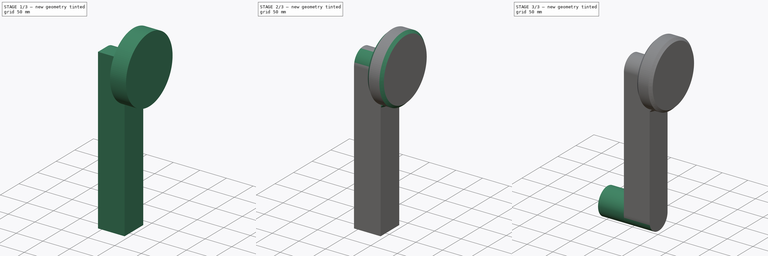
[diagram: build sequence overview — one tinted view per stage of 3, left to right]
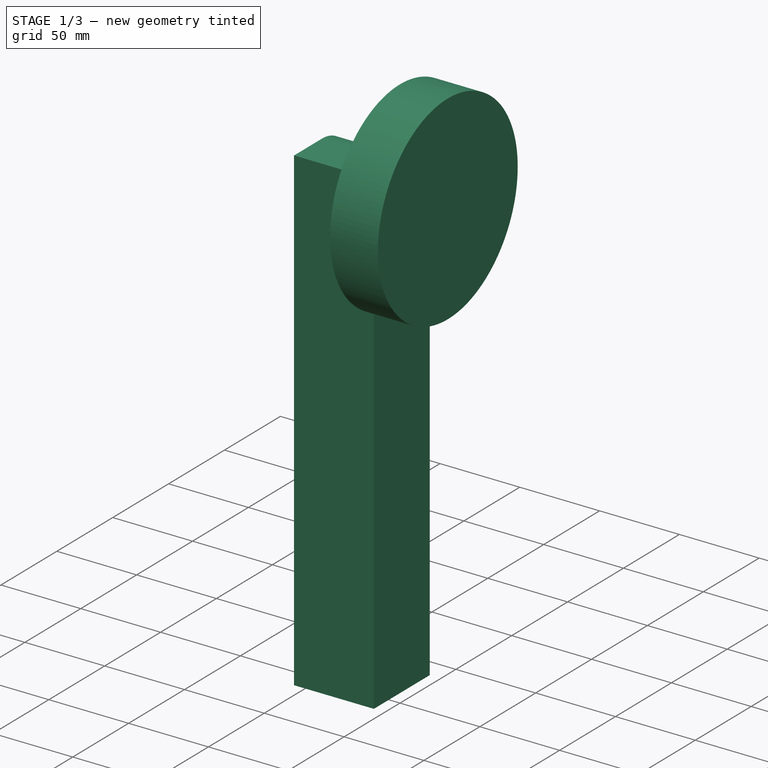
[diagram: stage 1 of 3 — iso view after this stage's code; geometry added in this stage tinted green]
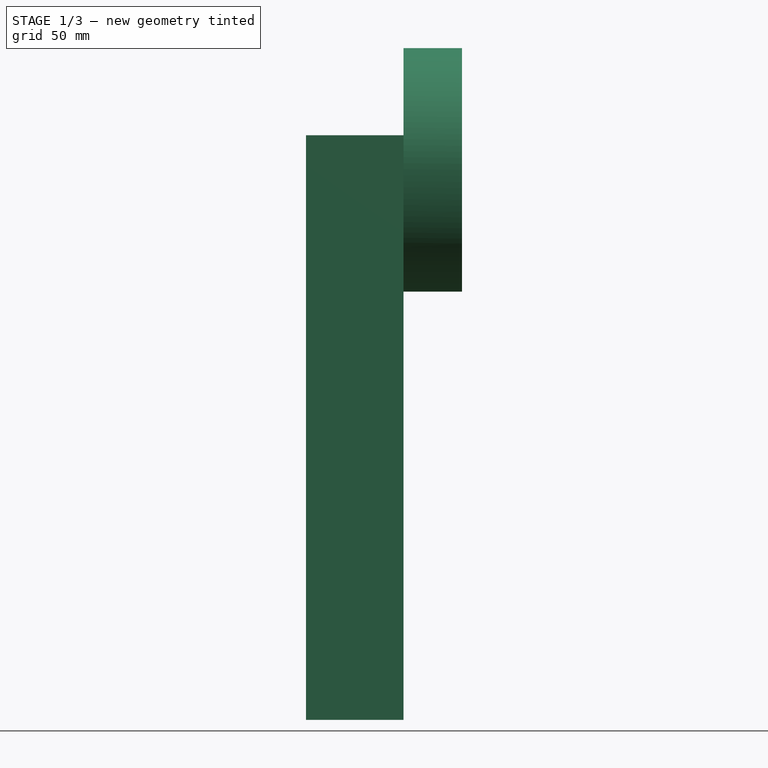
[diagram: stage 1 of 3 — front view after this stage's code; geometry added in this stage tinted green]
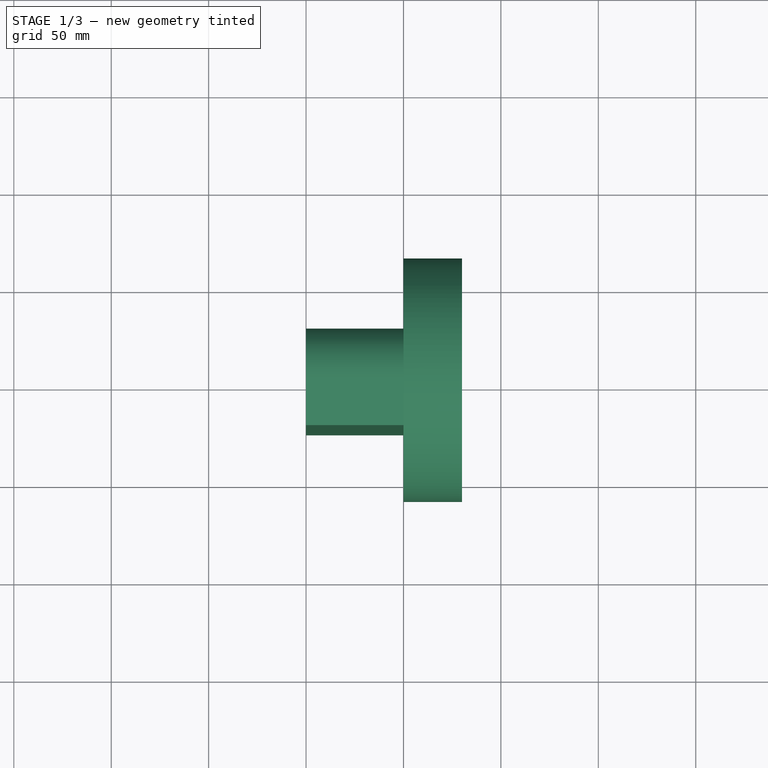
[diagram: stage 1 of 3 — top view after this stage's code; geometry added in this stage tinted green]
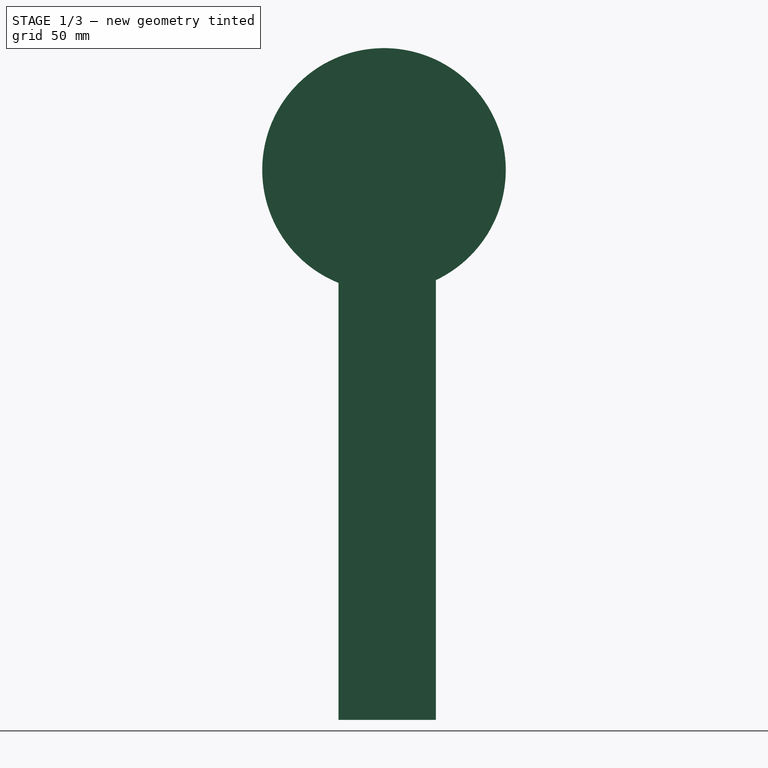
[diagram: stage 1 of 3 — right view after this stage's code; geometry added in this stage tinted green]
FCSTD DOCUMENT  (FreeCAD 0.20R29177 (Git))
Label: WheelChassisLink
License: All rights reserved
LicenseURL: http://en.wikipedia.org/wiki/All_rights_reserved
objects: PartDesign::Fillet×4, Sketcher::SketchObject×3, PartDesign::Pad×3, PartDesign::Chamfer×1, PartDesign::Body×1
note: 20 computed .brp shape members not serialized (recipe doc carries the construction recipe); baked Part::Feature solids carry a one-line shape summary decoded from their .brp

FEATURE [Sketcher::SketchObject] Sketch
  FullyConstrained = true
  MapMode = 5
  Placement = pos=(0,0,0) rot=(0.57735,0.57735,0.57735;2.0944rad)
  Support = -> [YZ_Plane]
  sketch-geometry (1):
    g0: Circle CenterX=0 CenterY=0 CenterZ=0 NormalX=0 NormalY=0 NormalZ=1 AngleXU=0 Radius=62.5
  constraints (2):
    c: Coincident(g0,g-1)
    c: Diameter(g0) = 125
FEATURE [PartDesign::Pad] Pad
  Direction = (1,-2e-16,3e-16)
  Length = 30
  Length2 = 10
  Placement = pos=(0,0,0) rot=(0.57735,0.57735,0.57735;2.0944rad)
  Profile = -> Sketch
  ReferenceAxis = -> Sketch [N_Axis]
  Type = 0
FEATURE [Sketcher::SketchObject] Sketch001
  FullyConstrained = false
  MapMode = 5
  Placement = pos=(0,0,0) rot=(0.57735,0.57735,0.57735;2.0944rad)
  Support = -> [YZ_Plane]
  sketch-geometry (4):
    g0: LineSegment StartX=-23.3503 StartY=17.7619 StartZ=0 EndX=26.6497 EndY=17.7619 EndZ=0
    g1: LineSegment StartX=26.6497 StartY=17.7619 StartZ=0 EndX=26.6497 EndY=-282.238 EndZ=0
    g2: LineSegment StartX=26.6497 StartY=-282.238 StartZ=0 EndX=-23.3503 EndY=-282.238 EndZ=0
    g3: LineSegment StartX=-23.3503 StartY=-282.238 StartZ=0 EndX=-23.3503 EndY=17.7619 EndZ=0
  constraints (10):
    c: Coincident(g0,g1)
    c: Coincident(g1,g2)
    c: Coincident(g2,g3)
    c: Coincident(g3,g0)
    c: Horizontal(g0)
    c: Horizontal(g2)
    c: Vertical(g1)
    c: Vertical(g3)
    c: DistanceY(g1,g1) = 300
    c: DistanceX(g2,g2) = 50
FEATURE [PartDesign::Pad] Pad001
  BaseFeature = -> Pad
  Direction = (1,-2e-16,3e-16)
  Length = 50
  Length2 = 10
  Placement = pos=(0,0,0) rot=(0.57735,0.57735,0.57735;2.0944rad)
  Profile = -> Sketch001
  ReferenceAxis = -> Sketch001 [N_Axis]
  Reversed = true
  Type = 0
FEATURE [PartDesign::Fillet] Fillet
  Base = -> Pad001 [Edge12]
  BaseFeature = -> Pad001
  Placement = pos=(0,0,0) rot=(0.57735,0.57735,0.57735;2.0944rad)
  Radius = 25
  SupportTransform = false
  UseAllEdges = false
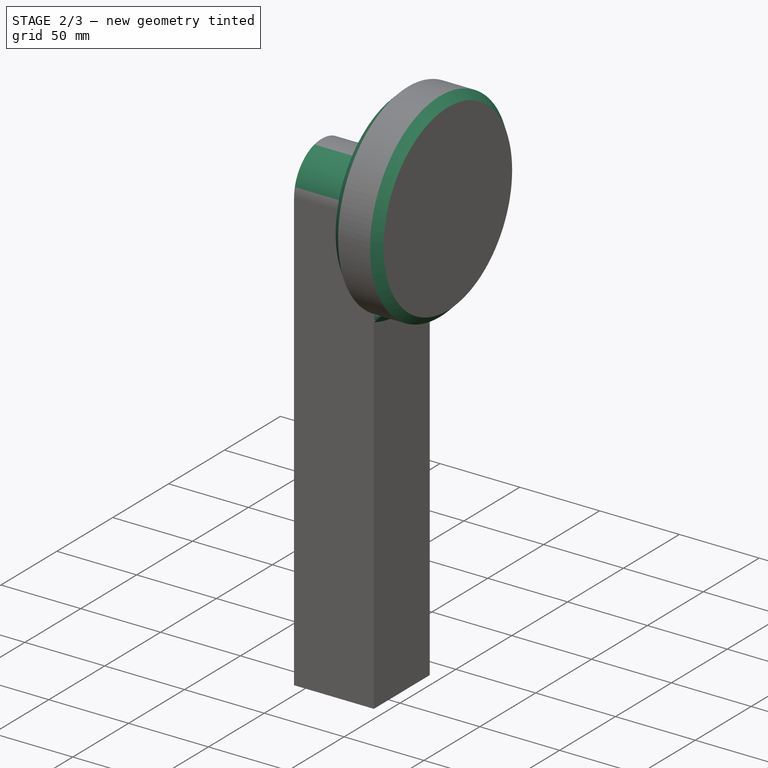
[diagram: stage 2 of 3 — iso view after this stage's code; geometry added in this stage tinted green]
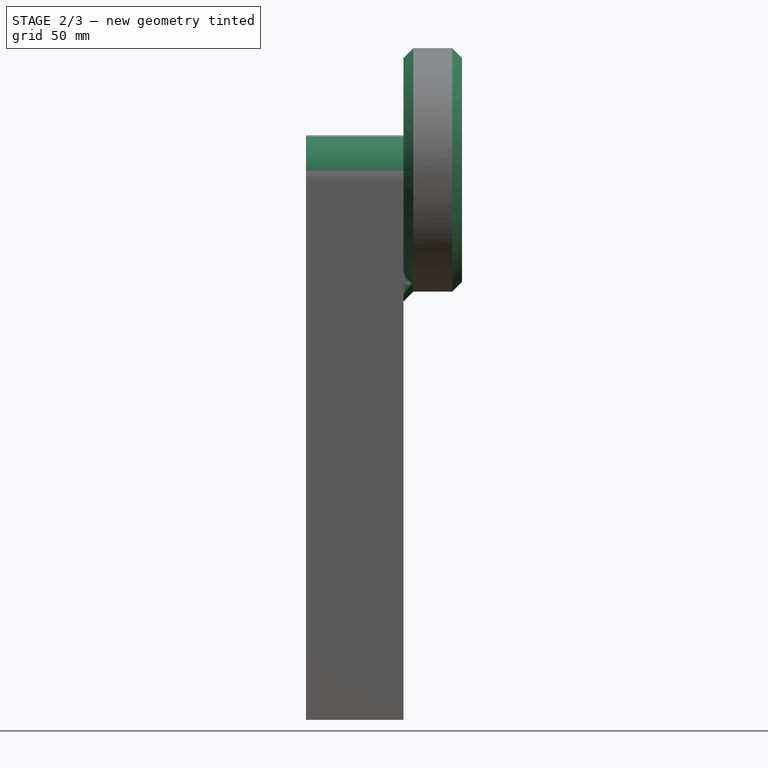
[diagram: stage 2 of 3 — front view after this stage's code; geometry added in this stage tinted green]
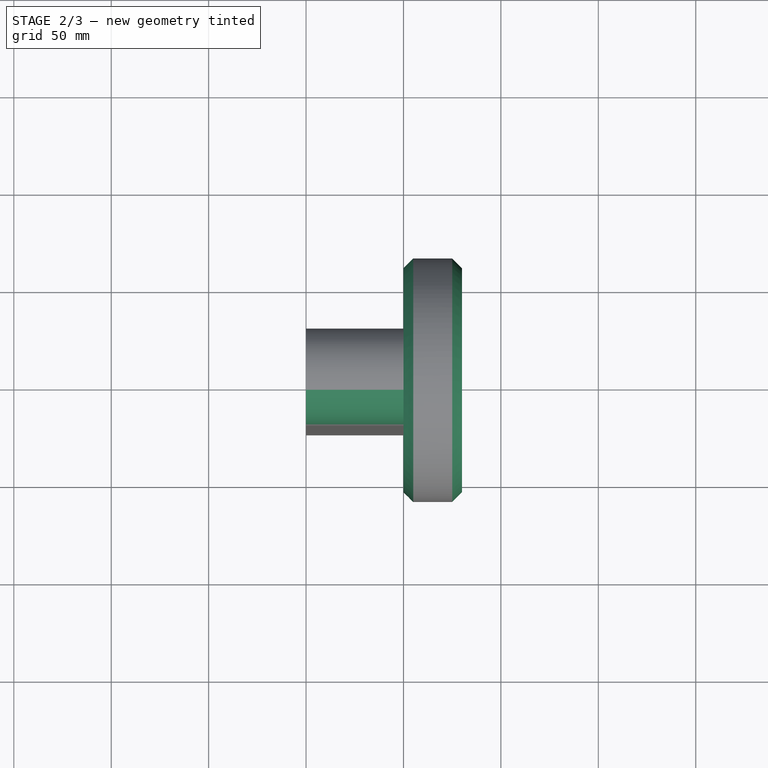
[diagram: stage 2 of 3 — top view after this stage's code; geometry added in this stage tinted green]
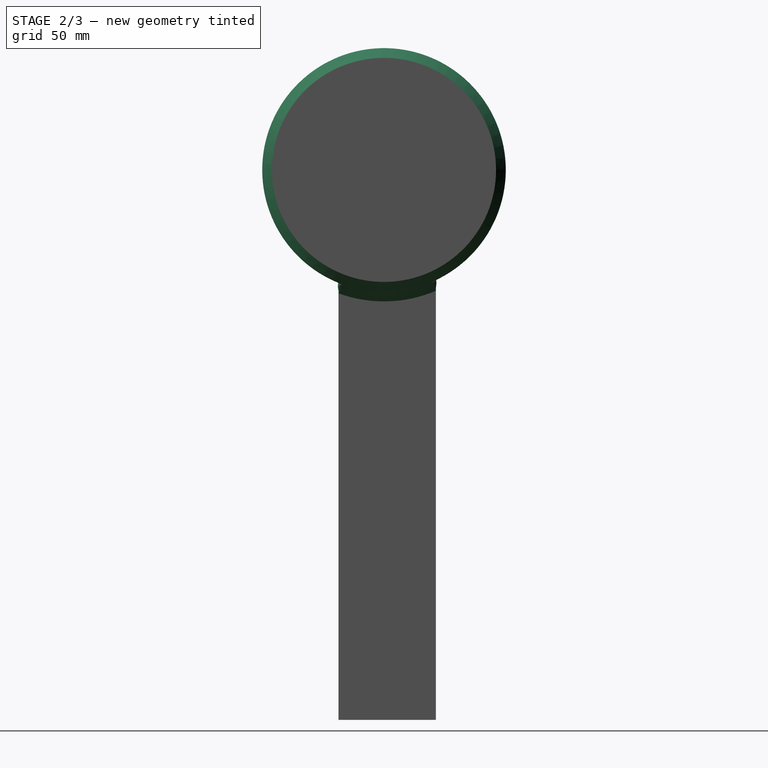
[diagram: stage 2 of 3 — right view after this stage's code; geometry added in this stage tinted green]
FEATURE [PartDesign::Fillet] Fillet001
  Base = -> Fillet [Edge16]
  BaseFeature = -> Fillet
  Placement = pos=(0,0,0) rot=(0.57735,0.57735,0.57735;2.0944rad)
  Radius = 24
  SupportTransform = false
  UseAllEdges = false
FEATURE [PartDesign::Chamfer] Chamfer
  Angle = 45
  Base = -> Fillet001 [Face7]
  BaseFeature = -> Fillet001
  ChamferType = 0
  FlipDirection = false
  Placement = pos=(0,0,0) rot=(0.57735,0.57735,0.57735;2.0944rad)
  Size = 5
  Size2 = 1
  SupportTransform = false
  UseAllEdges = false
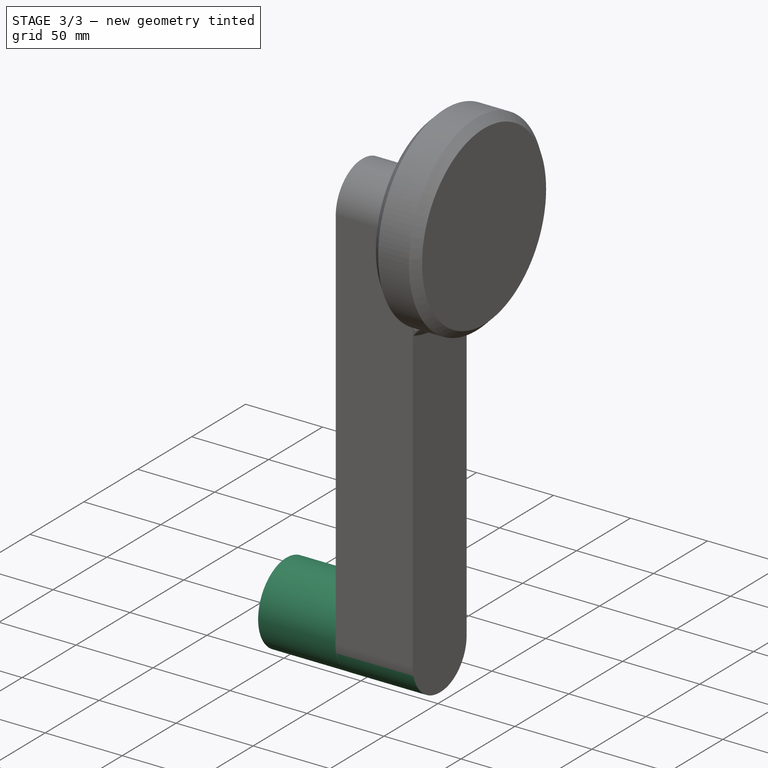
[diagram: stage 3 of 3 — iso view after this stage's code; geometry added in this stage tinted green]
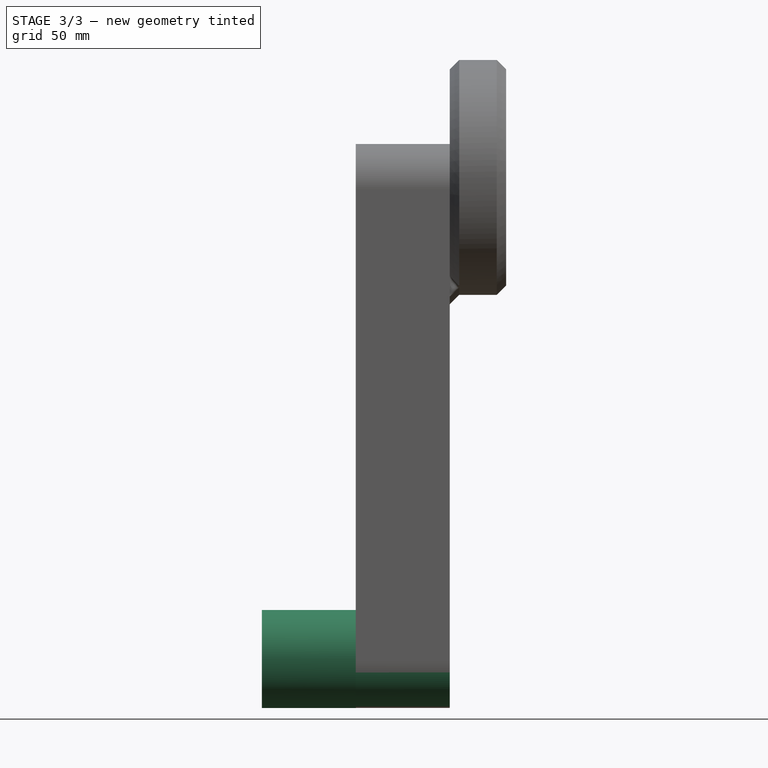
[diagram: stage 3 of 3 — front view after this stage's code; geometry added in this stage tinted green]
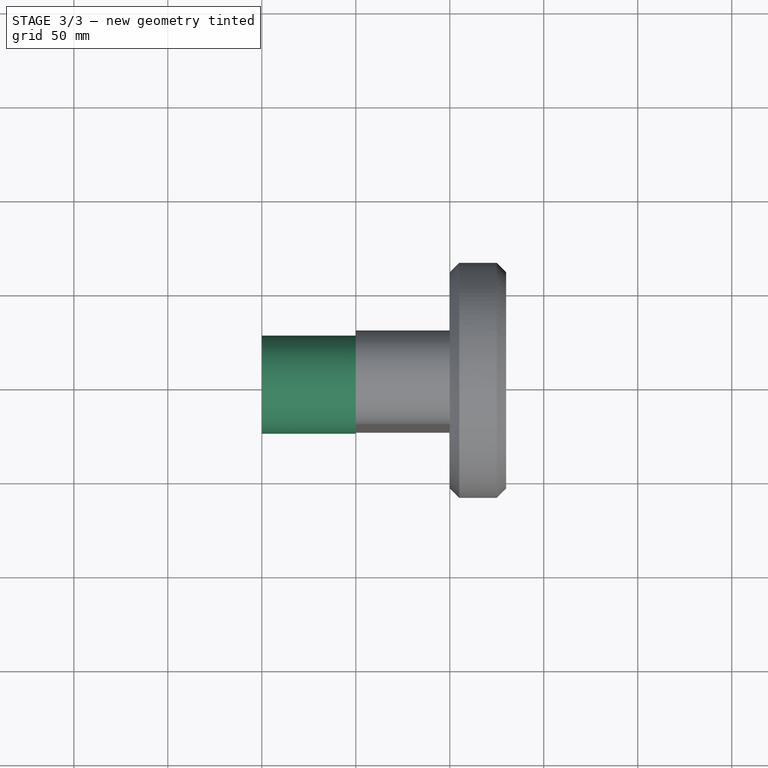
[diagram: stage 3 of 3 — top view after this stage's code; geometry added in this stage tinted green]
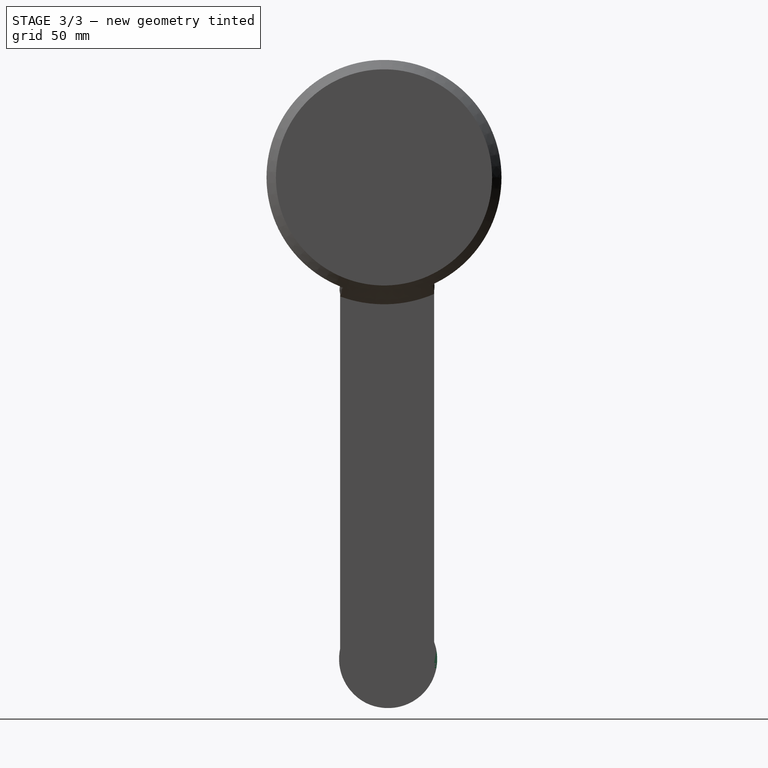
[diagram: stage 3 of 3 — right view after this stage's code; geometry added in this stage tinted green]
FEATURE [PartDesign::Fillet] Fillet002
  Base = -> Chamfer [Edge32]
  BaseFeature = -> Chamfer
  Placement = pos=(0,0,0) rot=(0.57735,0.57735,0.57735;2.0944rad)
  Radius = 25
  SupportTransform = false
  UseAllEdges = false
FEATURE [PartDesign::Fillet] Fillet003
  Base = -> Fillet002 [Edge31]
  BaseFeature = -> Fillet002
  Placement = pos=(0,0,0) rot=(0.57735,0.57735,0.57735;2.0944rad)
  Radius = 24
  SupportTransform = false
  UseAllEdges = false
FEATURE [Sketcher::SketchObject] Sketch002
  FullyConstrained = false
  MapMode = 5
  Placement = pos=(-50,2.22e-14,-1.67e-14) rot=(0.57735,0.57735,-0.57735;4.18879rad)
  sketch-geometry (1):
    g0: Circle CenterX=2.1929 CenterY=256.211 CenterZ=0 NormalX=0 NormalY=0 NormalZ=1 AngleXU=0 Radius=26.0985
FEATURE [PartDesign::Pad] Pad002
  BaseFeature = -> Fillet003
  Direction = (-1,4e-16,-4e-16)
  Length = 50
  Length2 = 10
  Placement = pos=(0,0,0) rot=(0.57735,0.57735,0.57735;2.0944rad)
  Profile = -> Sketch002
  ReferenceAxis = -> Sketch002 [N_Axis]
  Type = 0
FEATURE [PartDesign::Body] Body
  Group = -> [Sketch,Pad,Sketch001,Pad001,Fillet,Fillet001,Chamfer,Fillet002,Fillet003,Sketch002,Pad002]
  Origin = -> Origin
  Tip = -> Pad002
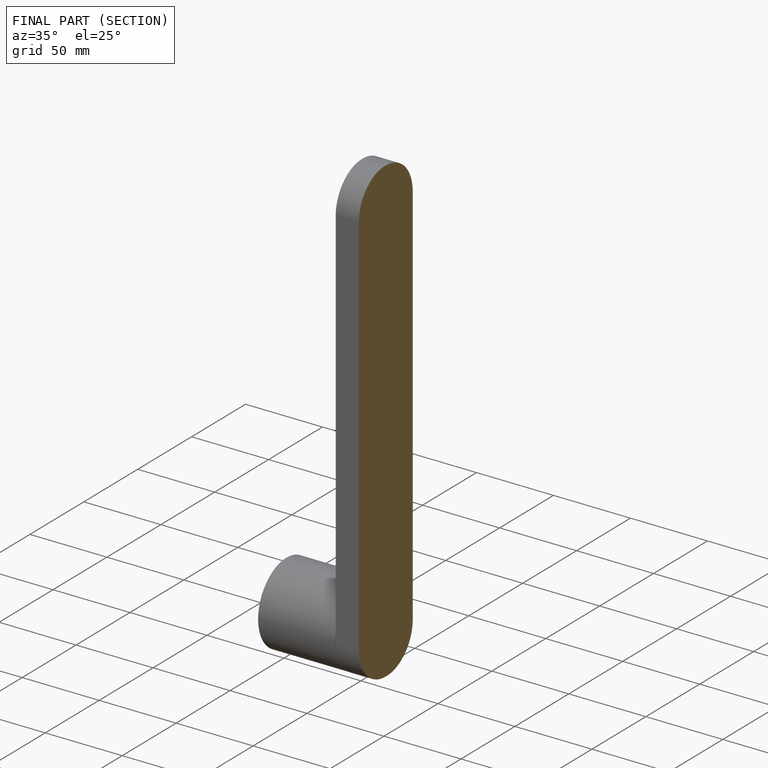
[diagram: finished part — half-section view (interior)]
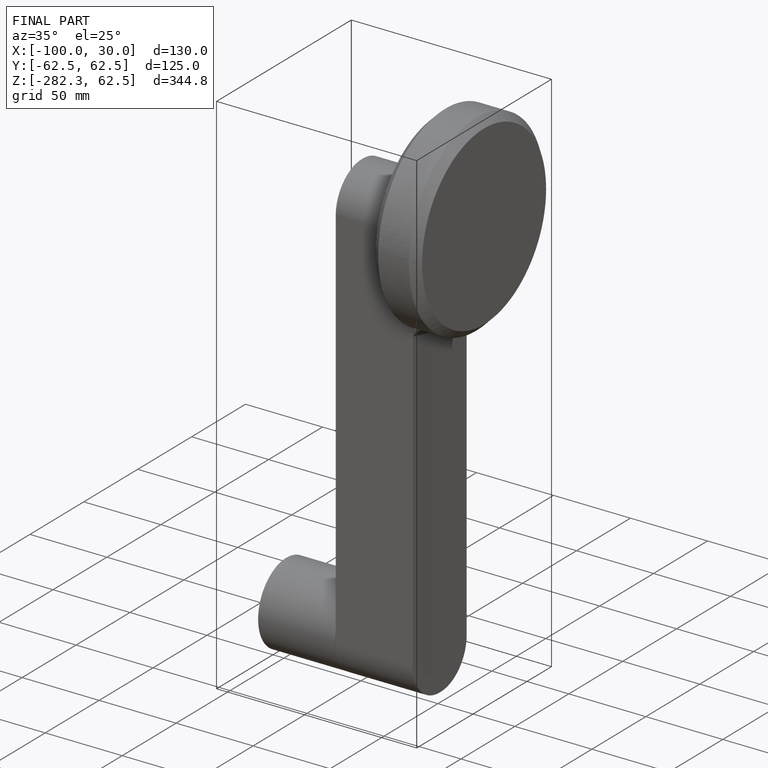
[diagram: finished part — iso view with bounding-box wireframe]
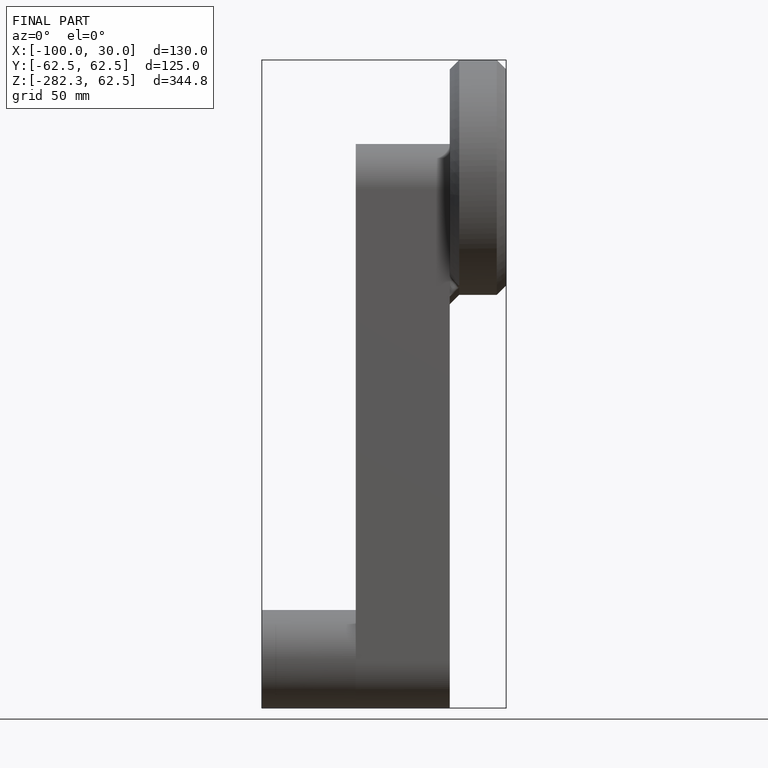
[diagram: finished part — front view with bounding-box wireframe]
